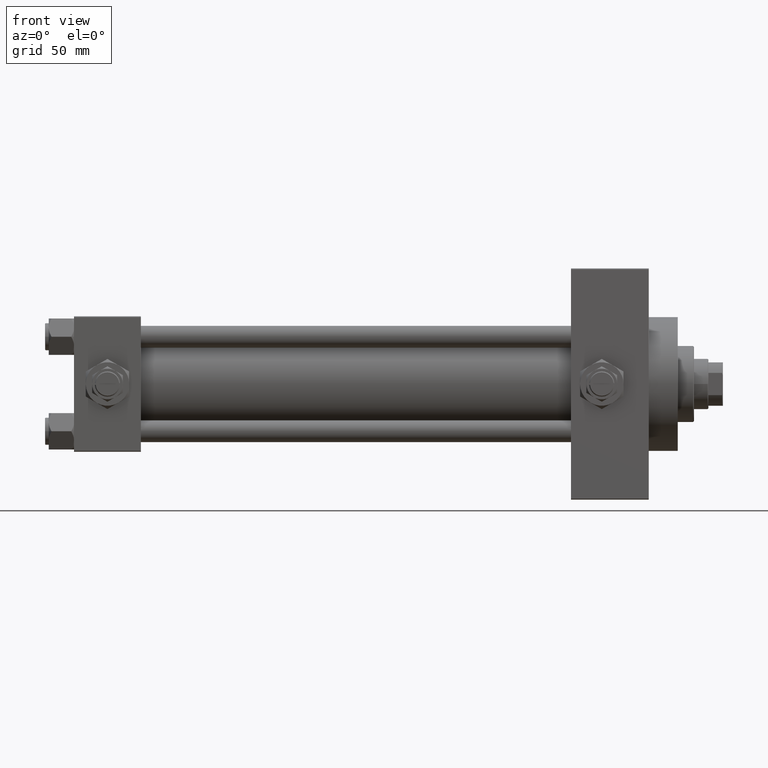
[diagram: clean part render]
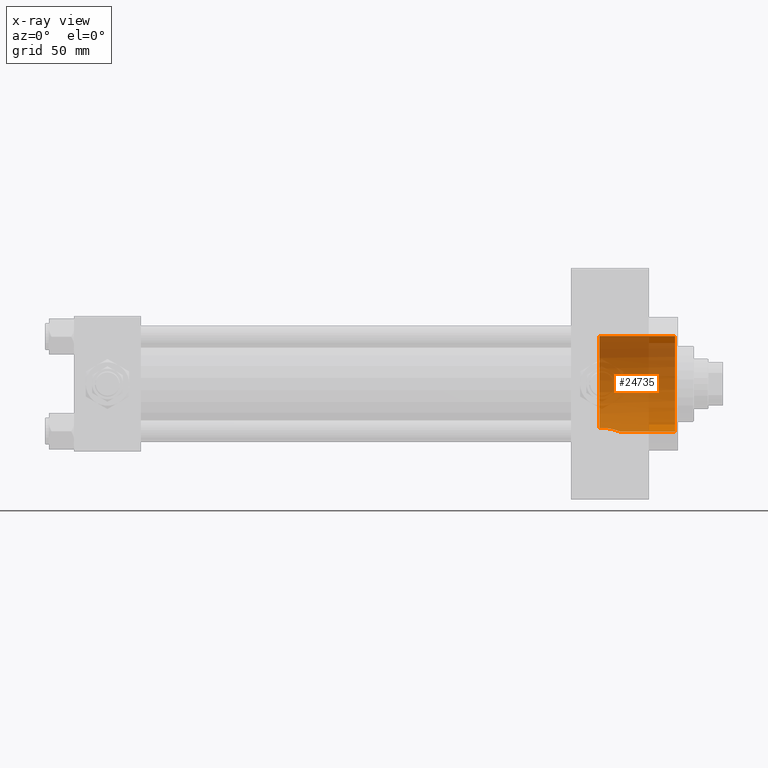
[diagram: x-ray — body ghosted, one internal face saturated and labeled with its STEP entity id]
A machine part, front view, then the same camera in x-ray: the body is ghosted and one INTERNAL B-rep face — a face not visible from any outside direction — is saturated and labeled: STEP entity #24735.
In plain terms, the highlighted cylindrical surface (partial cylindrical patch) has radius 26.5 mm, axis along (1, 0, 0).
Its self-contained STEP definition (entity closure, byte-faithful):
#242 = CARTESIAN_POINT ( 'NONE',  ( 294.4441749543286164, 10.19789382658401422, -24.45934298840090548 ) ) ;
#482 = ORIENTED_EDGE ( 'NONE', *, *, #43341, .T. ) ;
#2260 = EDGE_CURVE ( 'NONE', #21448, #40237, #11367, .T. ) ;
#2556 = EDGE_CURVE ( 'NONE', #17374, #8089, #14177, .T. ) ;
#3314 = CARTESIAN_POINT ( 'NONE',  ( 292.2299651273086738, 10.50378173186092745, -24.32953270370886756 ) ) ;
#3562 = CARTESIAN_POINT ( 'NONE',  ( 301.8350634734959499, 3.638478613961702912, -26.25141056013273300 ) ) ;
#3912 = LINE ( 'NONE', #6995, #8262 ) ;
#3923 = VECTOR ( 'NONE', #10324, 1000.000000000000000 ) ;
#4315 = CARTESIAN_POINT ( 'NONE',  ( 290.7399999999999523, 10.40398000767013542, -24.37226292324945831 ) ) ;
#5023 = FACE_OUTER_BOUND ( 'NONE', #14636, .T. ) ;
#6995 = CARTESIAN_POINT ( 'NONE',  ( 290.7399999999999523, 3.245314017740486554E-15, 26.50000000000000355 ) ) ;
#7145 = CARTESIAN_POINT ( 'NONE',  ( 300.8701661937234348, 5.628741928601582067, -25.90236100434594491 ) ) ;
#7300 = CARTESIAN_POINT ( 'NONE',  ( 290.7399999999999523, 0.000000000000000000, 0.000000000000000000 ) ) ;
#7389 = CARTESIAN_POINT ( 'NONE',  ( 291.4867779838282900, 10.49442042171648026, -24.33365591073746259 ) ) ;
#7647 = CARTESIAN_POINT ( 'NONE',  ( 294.8037318579563362, 10.10473920047654595, -24.49813564323963178 ) ) ;
#8089 = VERTEX_POINT ( 'NONE', #40127 ) ;
#8149 = CARTESIAN_POINT ( 'NONE',  ( 297.8214836787067270, 8.745726648652317081, -25.01826792439339187 ) ) ;
#8262 = VECTOR ( 'NONE', #50065, 1000.000000000000000 ) ;
#8558 = CARTESIAN_POINT ( 'NONE',  ( 332.4999999999999432, 0.000000000000000000, 0.000000000000000000 ) ) ;
#9427 = EDGE_CURVE ( 'NONE', #40237, #12598, #3912, .T. ) ;
#10016 = AXIS2_PLACEMENT_3D ( 'NONE', #8558, #16260, #31871 ) ;
#10324 = DIRECTION ( 'NONE',  ( 1.000000000000000000, -0.000000000000000000, -0.000000000000000000 ) ) ;
#11367 = CIRCLE ( 'NONE', #45783, 26.50000000000000355 ) ;
#12411 = CARTESIAN_POINT ( 'NONE',  ( 290.7399999999999523, 10.40398000767013542, -24.37226292324945831 ) ) ;
#12598 = VERTEX_POINT ( 'NONE', #35366 ) ;
#14177 = LINE ( 'NONE', #37481, #3923 ) ;
#14462 = ORIENTED_EDGE ( 'NONE', *, *, #47372, .T. ) ;
#14491 = DIRECTION ( 'NONE',  ( 1.000000000000000000, 0.000000000000000000, 0.000000000000000000 ) ) ;
#14493 = ORIENTED_EDGE ( 'NONE', *, *, #9427, .F. ) ;
#14636 = EDGE_LOOP ( 'NONE', ( #14493, #17678, #14462, #44982, #482 ) ) ;
#14844 = CARTESIAN_POINT ( 'NONE',  ( 299.5039792871087911, 7.352021432312241700, -25.46477158686609243 ) ) ;
#15248 = DIRECTION ( 'NONE',  ( 0.000000000000000000, 0.000000000000000000, -1.000000000000000000 ) ) ;
#15345 = CARTESIAN_POINT ( 'NONE',  ( 302.3797757294332200, 1.493268271475394648, -26.46049876817949809 ) ) ;
#16260 = DIRECTION ( 'NONE',  ( 1.000000000000000000, 0.000000000000000000, 0.000000000000000000 ) ) ;
#17374 = VERTEX_POINT ( 'NONE', #26772 ) ;
#17678 = ORIENTED_EDGE ( 'NONE', *, *, #2260, .F. ) ;
#19192 = CARTESIAN_POINT ( 'NONE',  ( 302.1639830582153650, 2.580729652396744456, -26.37652280659619564 ) ) ;
#20199 = CARTESIAN_POINT ( 'NONE',  ( 302.4800000000001319, 1.044555178251169365E-14, -26.50000000000006750 ) ) ;
#21448 = VERTEX_POINT ( 'NONE', #12411 ) ;
#23016 = CARTESIAN_POINT ( 'NONE',  ( 301.2405592406191772, 4.999168989607035485, -26.03318073817899148 ) ) ;
#23273 = CARTESIAN_POINT ( 'NONE',  ( 293.7090337631726129, 10.34650826617285624, -24.39684948145012910 ) ) ;
#23769 = CARTESIAN_POINT ( 'NONE',  ( 298.4137155183434515, 8.320227012065185335, -25.16506772452922647 ) ) ;
#24023 = CARTESIAN_POINT ( 'NONE',  ( 302.4799999999999613, 0.3734547879239760171, -26.50000000000001776 ) ) ;
#24172 = B_SPLINE_CURVE_WITH_KNOTS ( 'NONE', 3,
 ( #4315, #7389, #3314, #43263, #23273, #242, #7647, #42263, #31467, #8149, #23769, #14844, #30457, #7145, #23016, #38665, #3562, #42766, #19192, #34804, #15345, #30957, #24023, #20199 ),
 .UNSPECIFIED., .F., .F.,
 ( 4, 2, 2, 2, 2, 2, 2, 2, 2, 2, 2, 4 ),
 ( 0.000000000000000000, 0.002226462588988838403, 0.003339693883483256954, 0.004452925177977676806, 0.006679387766966511306, 0.008905850355955344938, 0.01113231294494417684, 0.01335877553393301047, 0.01447200682842745764, 0.01558523812292190655, 0.01669846941741635546, 0.01781170071191080437 ),
 .UNSPECIFIED. ) ;
#24735 = ADVANCED_FACE ( 'NONE', ( #5023 ), #40389, .F. ) ;
#24738 = CARTESIAN_POINT ( 'NONE',  ( 290.7399999999999523, 0.000000000000000000, 0.000000000000000000 ) ) ;
#26772 = CARTESIAN_POINT ( 'NONE',  ( 302.4800000000001319, 1.044555178251169365E-14, -26.50000000000006750 ) ) ;
#30457 = CARTESIAN_POINT ( 'NONE',  ( 300.0047687462550243, 6.803400717438842449, -25.61891449644600272 ) ) ;
#30957 = CARTESIAN_POINT ( 'NONE',  ( 302.4596852673074636, 0.7513843442591100485, -26.49194720587044216 ) ) ;
#31467 = CARTESIAN_POINT ( 'NONE',  ( 296.5354866893688950, 9.476643251961693437, -24.75065044043746099 ) ) ;
#31871 = DIRECTION ( 'NONE',  ( 0.000000000000000000, 0.000000000000000000, -1.000000000000000000 ) ) ;
#32428 = DIRECTION ( 'NONE',  ( 0.000000000000000000, 0.000000000000000000, -1.000000000000000000 ) ) ;
#32682 = DIRECTION ( 'NONE',  ( 1.000000000000000000, -0.000000000000000000, -0.000000000000000000 ) ) ;
#34804 = CARTESIAN_POINT ( 'NONE',  ( 302.3203974186216101, 1.859062739166801315, -26.43718984002443051 ) ) ;
#35366 = CARTESIAN_POINT ( 'NONE',  ( 332.4999999999999432, 3.245314017740486554E-15, 26.50000000000000355 ) ) ;
#37481 = CARTESIAN_POINT ( 'NONE',  ( 290.7399999999999523, 0.000000000000000000, -26.50000000000000355 ) ) ;
#38665 = CARTESIAN_POINT ( 'NONE',  ( 301.6992295974814624, 3.986558870987742420, -26.20065640115691608 ) ) ;
#40127 = CARTESIAN_POINT ( 'NONE',  ( 332.4999999999999432, 0.000000000000000000, -26.50000000000000355 ) ) ;
#40237 = VERTEX_POINT ( 'NONE', #48543 ) ;
#40389 = CYLINDRICAL_SURFACE ( 'NONE', #47927, 26.50000000000000355 ) ;
#42263 = CARTESIAN_POINT ( 'NONE',  ( 295.8597611319121370, 9.771269649766498588, -24.63391780956524002 ) ) ;
#42766 = CARTESIAN_POINT ( 'NONE',  ( 302.0669445693513921, 2.936601299046126101, -26.33916201839660332 ) ) ;
#43263 = CARTESIAN_POINT ( 'NONE',  ( 293.3395490093495823, 10.40067243543119879, -24.37370326712202129 ) ) ;
#43341 = EDGE_CURVE ( 'NONE', #8089, #12598, #47678, .T. ) ;
#44982 = ORIENTED_EDGE ( 'NONE', *, *, #2556, .T. ) ;
#45783 = AXIS2_PLACEMENT_3D ( 'NONE', #7300, #14491, #15248 ) ;
#47372 = EDGE_CURVE ( 'NONE', #21448, #17374, #24172, .T. ) ;
#47678 = CIRCLE ( 'NONE', #10016, 26.50000000000000355 ) ;
#47927 = AXIS2_PLACEMENT_3D ( 'NONE', #24738, #32682, #32428 ) ;
#48543 = CARTESIAN_POINT ( 'NONE',  ( 290.7399999999999523, 3.245314017740486554E-15, 26.50000000000000355 ) ) ;
#50065 = DIRECTION ( 'NONE',  ( 1.000000000000000000, -0.000000000000000000, -0.000000000000000000 ) ) ;